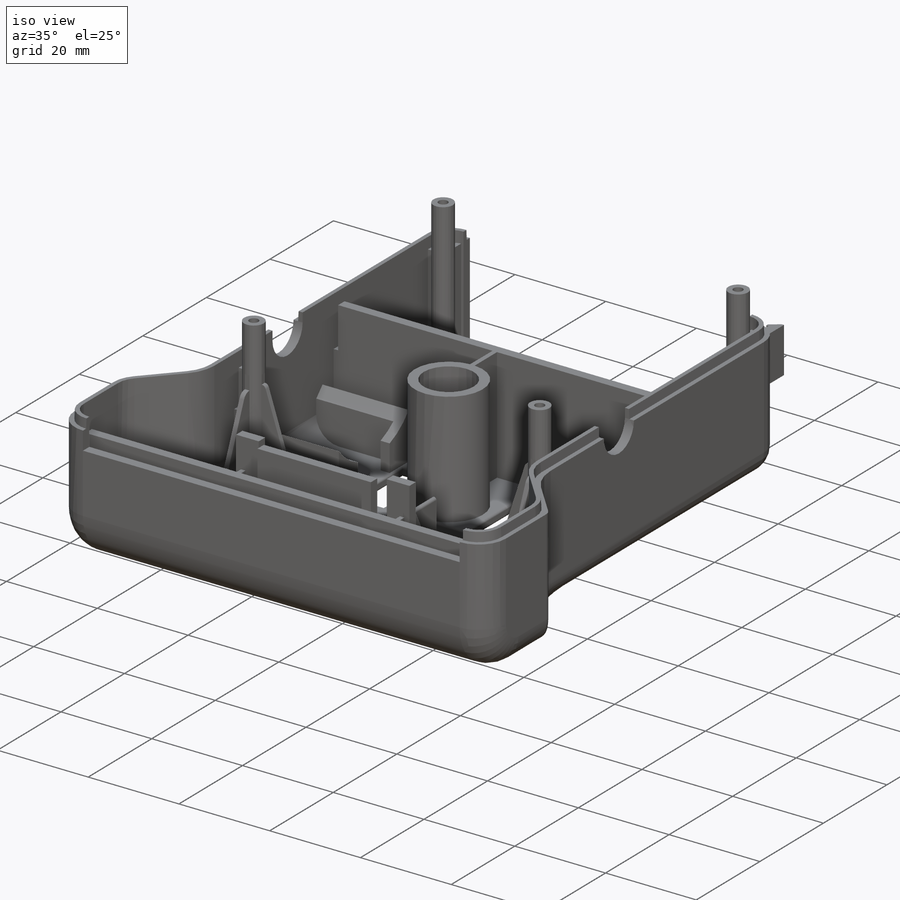
[diagram: iso view]
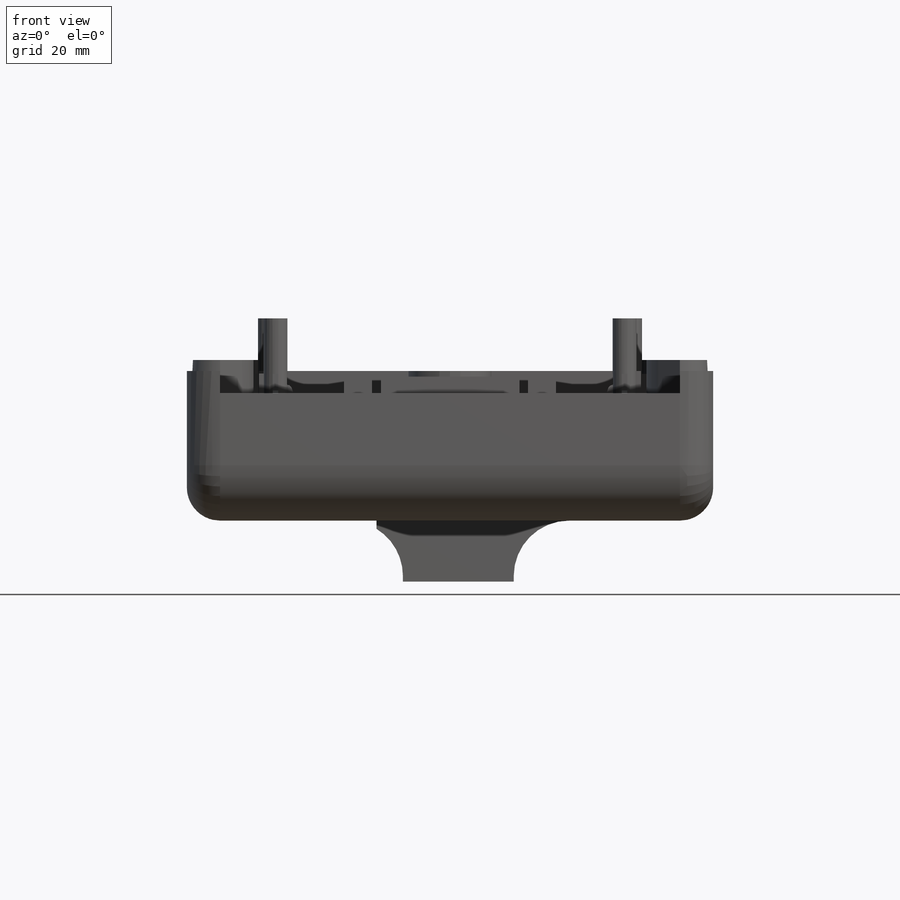
[diagram: front view]
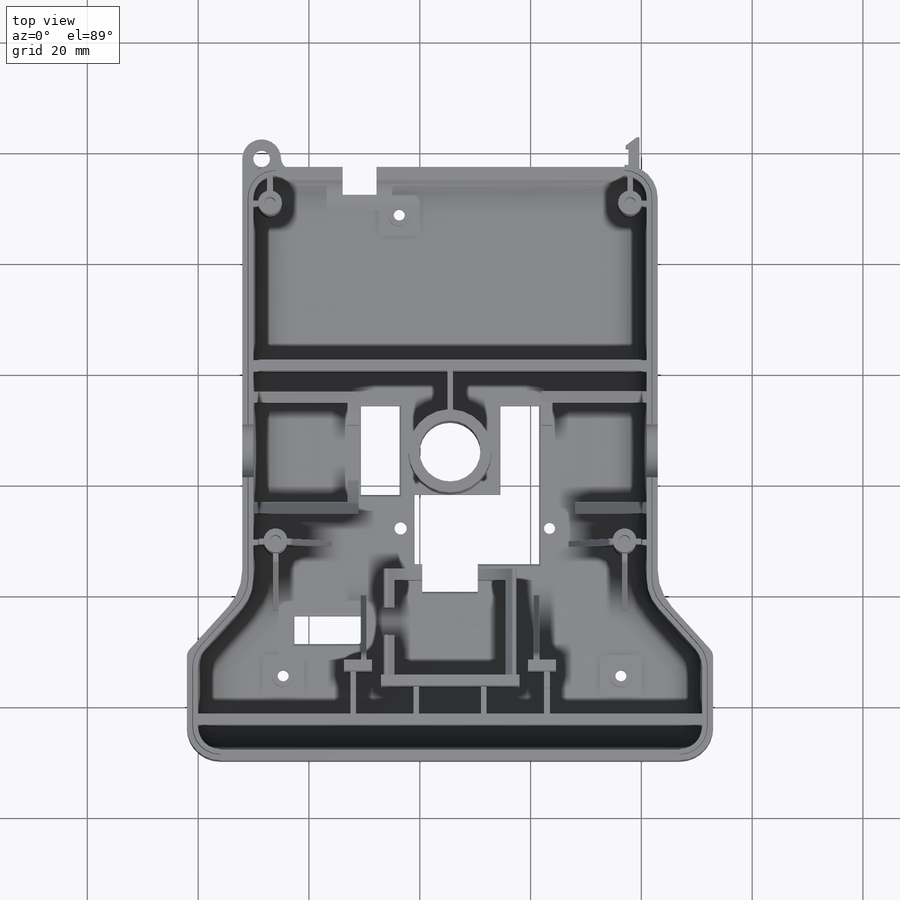
[diagram: top view]
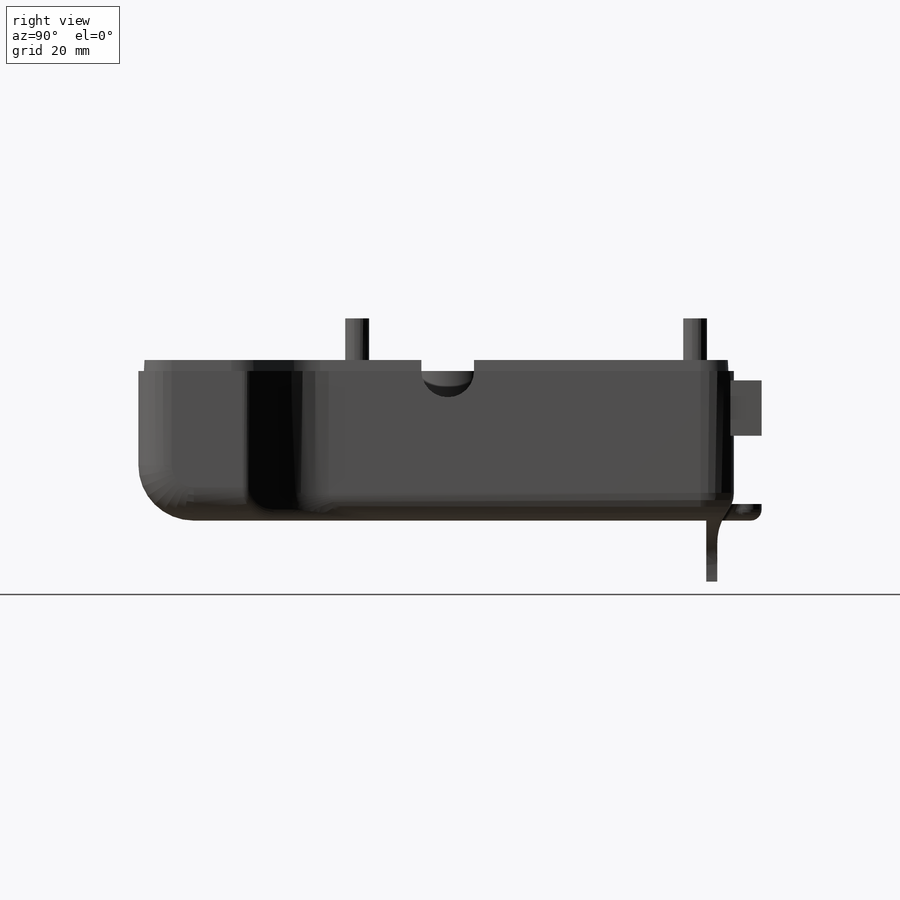
[diagram: right view]
SOLIDWORKS PART (.sldprt)
format: sldprt  version: not decoded by parser v0  size: 2,793,472 bytes
history: native  units: mm
features: sketch x58, cut_extrude x28, extrude x27, fillet x22, material x1 + 1 further entry (+13 scaffold rows collapsed; 2 parser-record rows omitted)
feature tree (152):
  scaffold x13  (default folders/planes/origin — collapsed)
  material  "ABS"
  "Annotations"  RD1=30mm
  sketch  "Sketch1"  dims[c1.D3=~4.544945mm c1.D1=65.0mm c1.D2=42.0mm c2.D3=0.0mm c2.D4=75.0mm c2.D5=22.0mm c2.D1=15.0mm]
  extrude  "Main Body Plate"  Depth=2mm
  parser-record x2  (decoder bookkeeping rows leaked as tree rows — omitted from the tree; the rows remain in map.json)
  sketch  "Sketch2"  dims[c1.D1=2.0mm c1.D2=3.0mm c1.D3=20.0mm c1.D4=18.5mm c1.D5=~57.203651mm c1.D6=42.0mm c2.D5=~44.660358mm c2.D6=5.0mm]
  extrude  "Boss-Extrude2"  Depth=25mm
  sketch  "Sketch4"  dims[c1.D1=1.0mm c1.D2=7.5mm c2.D1=2.0mm c2.D2=~10.756271mm c3.D1=~23.147816mm c3.D2=~10.756271mm c3.D3=3.0mm c4.D1=3.0mm c5.D1=0.0deg c6.D1=28.0mm]
  cut_extrude  "Cut-Extrude3"  Depth=7mm
  sketch  "Sketch3"  dims[D1=28.0mm]
  cut_extrude  "Cut-Extrude5"  [1 undecoded]
  sketch  "Sketch14"  dims[D3=28.0mm D1=10.0mm D2=7.0mm]
  extrude  "Boss-Extrude16"  [1 undecoded]
  sketch  "Sketch66"  dims[c1.D3=28.0mm c1.D1=10.0mm c1.D2=10.0mm c2.D2=90.0deg c3.D2=14.0mm c3.D4=10.0mm c4.D2=7.0mm]
  sketch  "Sketch10"  dims[D1=2.0mm D2=10.0mm]
  sketch  "Sketch8"  dims[c1.D1=2.0mm c1.D2=2.0mm c1.D3=2.0mm c1.D4=2.0mm c2.D1=2.0mm c2.D2=2.0mm c2.D3=~35.240453mm c3.D3=~178.939702deg c4.D3=2.0mm]
  extrude  "Outer Shell"  [1 undecoded]
  fillet  "Fillet11"  Radius=6mm
  sketch  "Sketch154"  dims[D1=2.0mm D2=10.0mm D3=0.7mm]
  extrude  "Boss-Extrude104"  Depth=3mm
  sketch  "Sketch155"  dims[D1=0.5mm]
  extrude  "Boss-Extrude105"  Depth=2mm
  sketch  "Sketch156"  dims[c1.D1=0.5mm c1.D2=0.5mm c2.D1=0.5mm c2.D2=0.5mm]
  cut_extrude  "Cut-Extrude92"  [1 undecoded]
  fillet  "Fillet29"  Radius=5mm
  fillet  "Fillet33"  Radius=4mm
  sketch  "Sketch67"  dims[D1=10.0mm]
  extrude  "Boss-Extrude58"  Depth=28.5mm
  sketch  "Sketch68"  dims[c1.D1=2.0mm c1.D2=2.0mm c1.D3=2.0mm c1.D4=2.0mm c1.D5=4.5mm c2.D1=2.0mm c2.D6=2.0mm c2.D7=2.0mm c3.D1=2.0mm c3.D7=~14.142136mm c4.D7=~179.274776deg c4.D8=~14.142136mm c5.D8=~179.274776deg c5.D7=2.0mm]
  cut_extrude  "Cut-Extrude34"  [1 undecoded]
  sketch  "Sketch75"
  cut_extrude  "Cut-Extrude37"  [1 undecoded]
  fillet  "Fillet34"  Radius=10mm
  fillet  "Fillet35"  Radius=6mm
  fillet  "Fillet36"  Radius=6mm
  fillet  "Fillet37"  Radius=4mm
  fillet  "Fillet38"  Radius=5mm
  sketch  "Sketch69"  dims[c1.D1=8.0mm c1.D2=~7.329116mm c1.D3=2.0mm c2.D2=3.0mm c2.D3=12.0mm c2.D4=22.33mm]
  extrude  "Boss-Extrude59"  Depth=0.01mm
  sketch  "Sketch9"  dims[D1=2.0mm]
  extrude  "Main Tube"  [1 undecoded]
  cut_extrude  "Cut-Extrude33"  [1 undecoded]
  sketch  "Sketch9<2>"
  sketch  "Sketch71"  dims[D1=22.5mm D2=12.5mm D3=~14.410796mm]
  cut_extrude  "Cut-Extrude36"  [1 undecoded]
  sketch  "Sketch72"  dims[D1=2.0mm D2=24.0mm D3=1.0mm]
  extrude  "Boss-Extrude60"  Depth=13mm
  fillet  "Fillet39"  Radius=6mm
  fillet  "Fillet40"  Radius=4mm
  fillet  "Fillet41"  Radius=10mm
  fillet  "Fillet42"  Radius=2mm
  fillet  "Fillet44"  Radius=5mm
  sketch  "Sketch77"  dims[D1=5.5mm D2=18.0mm]
  cut_extrude  "Cut-Extrude38"  [1 undecoded]
  sketch  "Sketch78"  dims[c1.D1=28.0mm c1.D2=~21.202198mm c2.D2=90.0deg c3.D2=~21.202198mm c4.D2=90.0deg c5.D2=7.0mm]
  cut_extrude  "Cut-Extrude39"  [1 undecoded]
  fillet  "Fillet49"  Radius=2mm
  sketch  "Sketch89"  dims[D1=3.0mm D2=2.0mm]
  extrude  "Boss-Extrude71"  Depth=3mm
  fillet  "Fillet52"  Radius=2mm
  sketch  "Sketch90"  dims[D1=5.0mm]
  cut_extrude  "Cut-Extrude54"  Depth=16mm
  sketch  "Sketch91"  dims[D1=2.0mm D2=14.5mm]
  extrude  "Boss-Extrude72"  [1 undecoded]
  sketch  "Sketch92"  dims[c1.D1=12.0mm c1.D2=16.0mm c1.D3=10.0mm c1.D4=10.0mm c1.D5=20.0mm c1.D6=7.0mm c1.D7=22.0mm c1.D8=3.0mm c1.D9=2.0mm c2.D1=1.0mm c2.D2=1.0mm]
  cut_extrude  "Cut-Extrude56"  Depth=16mm
  sketch  "Sketch74"  dims[D1=25.0mm D2=2.0mm D3=1.0mm D4=5.0mm D5=5.0mm D6=14.1mm D7=2.0mm D8=1.0mm D9=12.0mm D10=0.7mm D11=1.0mm]
  extrude  "Boss-Extrude62"  Depth=24mm
  sketch  "Sketch95"  dims[D1=2.0mm D2=20.0mm D3=2.5mm D4=10.0mm D5=20.0mm D6=2.0mm D7=2.0mm D8=2.0mm D9=2.0mm D10=20.0mm D11=2.5mm D12=10.0mm D13=20.0mm D14=2.0mm D15=10.0mm D16=2.5mm]
  fillet  "Fillet54"  Radius=2mm
  sketch  "Sketch107"  dims[c1.D1=4.3mm c1.D3=4.3mm c1.D7=8.0mm c1.D2=61.0mm c1.D4=6.0mm c1.D5=2.1mm c1.D6=5.0mm c2.D5=4.25mm c2.D4=6.0mm c3.D5=7.0mm c3.D6=65.0mm c4.D5=7.0mm]
  extrude  "Boss-Extrude80"  Depth=9.5mm
  sketch  "Sketch108"  dims[D1=2.0mm]
  cut_extrude  "Cut-Extrude65"  Depth=10mm
  sketch  "Sketch113"  dims[D1=66.0mm]
  sketch  "Sketch114"  dims[D1=2.0mm D2=20.0mm]
  extrude  "Boss-Extrude84"  Depth=11mm
  fillet  "Fillet68"  Radius=10mm
  extrude  "Boss-Extrude87"  Depth=3.5mm
  sketch  "Sketch115"  dims[D1=10.0mm]
  cut_extrude  "Cut-Extrude70"  [1 undecoded]
  sketch  "Sketch116"  dims[c1.D3=2.0mm c1.D4=2.0mm c1.D5=2.0mm c1.D9=2.2mm c1.D12=2.2mm c1.D13=2.2mm c1.D1=12.0mm c1.D2=5.0mm c2.D4=1.0mm c2.D5=1.0mm c2.D6=16.0mm c2.D7=7.0mm c2.D8=5.0mm c2.D10=2.5mm c2.D11=60.96mm c2.D13=2.0mm c2.D12=83.185mm c3.D13=20.955mm]
  cut_extrude  "Cut-Extrude71"  [1 undecoded]
  fillet  "Fillet69"  Radius=0.5mm
  sketch  "Sketch123"  dims[c1.D1=1.0mm c1.D2=1.0mm c1.D3=1.0mm c2.D1=10.0mm c2.D4=8.0mm c2.D5=1.0mm c2.D6=1.0mm c2.D7=1.0mm c2.D8=1.0mm c2.D9=10.0mm]
  sketch  "Sketch123<3>"
  extrude  "Boss-Extrude89"  [1 undecoded]
  extrude  "Boss-Extrude90"  Depth=10mm
  sketch  "Sketch126"  dims[D1=3.0mm]
  cut_extrude  "Cut-Extrude74"  [1 undecoded]
  sketch  "Sketch127"
  cut_extrude  "Cut-Extrude75"  [1 undecoded]
  sketch  "Sketch128"  dims[D1=2.0mm]
  cut_extrude  "Cut-Extrude76"  [1 undecoded]
  sketch  "Sketch131"  dims[D1=1.0mm]
  sketch  "Sketch133"  dims[c1.D1=20.0mm c1.D2=2.0mm c1.D3=2.0mm c1.D4=2.0mm c1.D5=2.0mm c1.D6=10.0mm c1.D7=2.0mm c1.D8=17.0mm c2.D1=18.0mm]
  extrude  "Boss-Extrude93"  Depth=15mm
  extrude  "Boss-Extrude95"  [1 undecoded]
  sketch  "Sketch133<4>"  dims[D1=20.0mm]
  sketch  "Sketch134"  dims[c1.D2=28.0mm c1.D1=7.0mm c1.D3=21.0mm c2.D1=20.0mm]
  cut_extrude  "Cut-Extrude79"  [1 undecoded]
  sketch  "Sketch135"  dims[D1=28.0mm D2=19.0mm]
  cut_extrude  "Cut-Extrude80"  [1 undecoded]
  sketch  "Sketch137"  dims[D1=1.0mm]
  extrude  "Boss-Extrude96"  [1 undecoded]
  cut_extrude  "Cut-Extrude85"  Depth=9mm
  fillet  "Fillet71"  Radius=0.5mm
  sketch  "Sketch144"  dims[D1=2.0mm]
  cut_extrude  "Cut-Extrude86"  [1 undecoded]
  extrude  "Boss-Extrude99"  [1 undecoded]
  sketch  "Sketch74<3>"  dims[D1=14.0mm]
  sketch  "Sketch146"  dims[D1=3.0mm]
  extrude  "Boss-Extrude100"  Depth=3.4mm
  extrude  "Boss-Extrude101"  [1 undecoded]
  sketch  "Sketch116<3>"  dims[D1=3.0mm]
  sketch  "Sketch147"  dims[D1=2.0mm]
  extrude  "Boss-Extrude102"  [1 undecoded]
  fillet  "Fillet73"  Radius=0.5mm
  sketch  "Sketch148"
  extrude  "Boss-Extrude103"  Depth=5mm
  sketch  "Sketch150"
  cut_extrude  "Cut-Extrude88"  [1 undecoded]
  sketch  "Sketch151"  dims[c1.D1=4.0mm c1.D2=10.0mm c2.D1=5.0mm c2.D2=5.0mm c2.D3=5.0mm]
  cut_extrude  "Cut-Extrude89"  [1 undecoded]
  sketch  "Sketch152"  dims[D1=10.0mm D2=5.0mm]
  cut_extrude  "Cut-Extrude90"  Depth=7mm
  fillet  "Fillet74"  Radius=5mm
  sketch  "Sketch153"  dims[D1=3.0mm]
  cut_extrude  "Cut-Extrude91"  [1 undecoded]
  sketch  "Sketch157"  dims[D1=9.5mm D2=~31.140768mm]
  cut_extrude  "Cut-Extrude93"  Depth=10mm
  sketch  "Sketch158"  dims[D1=9.5mm]
  cut_extrude  "Cut-Extrude94"  Depth=10mm
  cut_extrude  "Cut-Extrude83"  [1 undecoded]
  sketch  "Sketch68<7>"  dims[D1=23.0mm]
  sketch  "Sketch159"  dims[D1=0.0mm D2=0.0mm]
  extrude  "Boss-Extrude106"  [1 undecoded]
  fillet  "Fillet75"  Radius=8mm LipHeight=2mm LipWidth=1mm LipDraftAngle=3deg
decode coverage: 98 of 135 modeling features carry decoded parameters; 1 rows unclassified (native names shown)
note: ~ marks probable driven/reference dimensions
note: 31 parameter values undecoded
summary: no parameter record found for 31 features
note: suppression state not decoded; provenance and decode notes live in map.json
